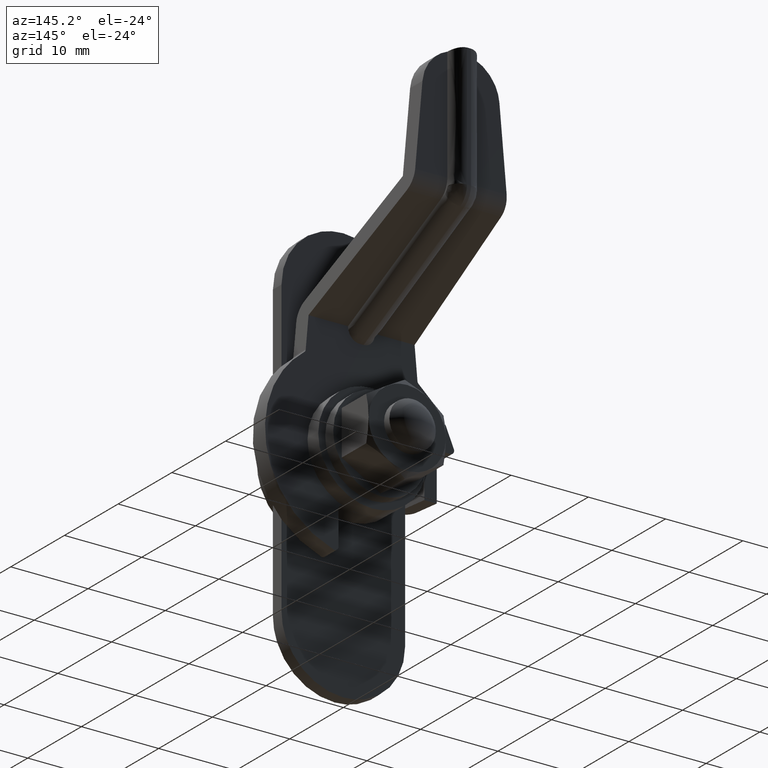
[diagram: clean part render]
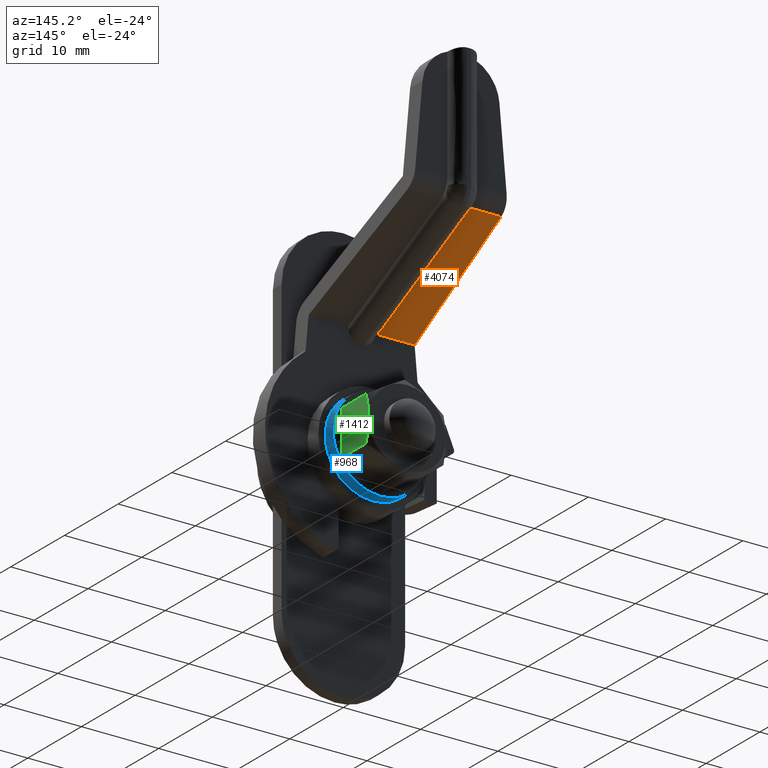
[diagram: same view with three faces highlighted in distinct colors, each labeled with its STEP entity id]
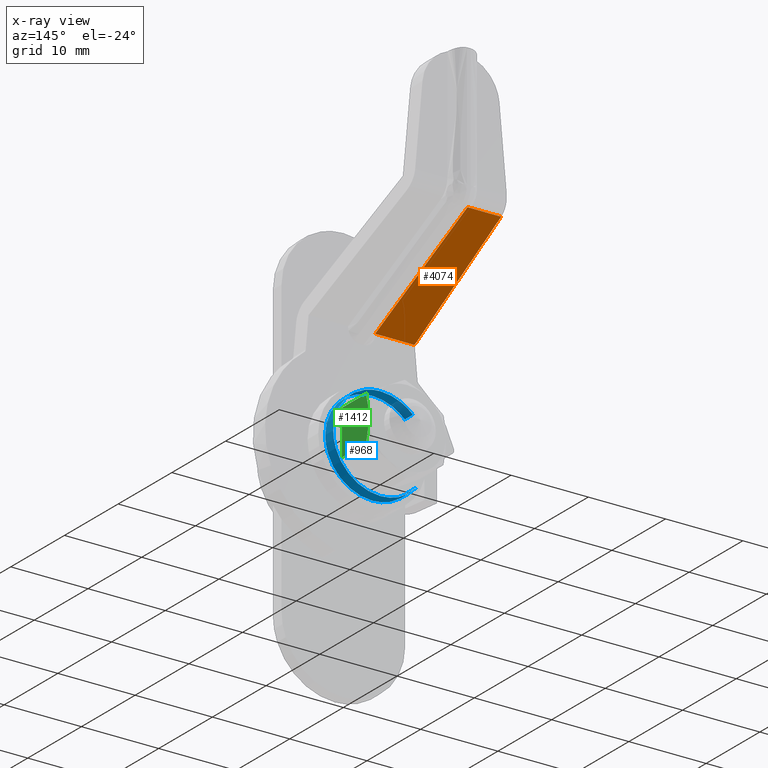
[diagram: x-ray of the same camera — body ghosted, the three highlighted faces saturated]
A machine part, auxiliary view with three faces highlighted in distinct colors.
The next image is the same camera in x-ray (body ghosted, the three faces saturated) — at least one of them is partly hidden behind the body in this view.
Their STEP definitions:

[orange] entity #4074 — the highlighted face is a freeform B-spline surface patch.
#3909=CARTESIAN_POINT('',(-1.750000000000030,19.512093947884001,22.934645504333350));
#3910=VERTEX_POINT('',#3909);
#3924=CARTESIAN_POINT('',(-1.750000000000030,2.299988000000000,14.499981079659619));
#3925=VERTEX_POINT('',#3924);
#3941=CARTESIAN_POINT('',(-1.750000000000030,19.512093947884001,22.934645504333350));
#3942=CARTESIAN_POINT('',(-1.750000000000030,2.299988000000000,14.499981079659619));
#3943=QUASI_UNIFORM_CURVE('',1,(#3941,#3942),.UNSPECIFIED.,.F.,.U.);
#3944=EDGE_CURVE('',#3910,#3925,#3943,.T.);
#3965=CARTESIAN_POINT('',(-6.104211758462009,19.512093947884100,22.934645504333400));
#3966=VERTEX_POINT('',#3965);
#3993=CARTESIAN_POINT('',(-6.104211758462009,19.512093947884100,22.934645504333400));
#3994=CARTESIAN_POINT('',(-1.750000000000030,19.512093947884001,22.934645504333350));
#3995=QUASI_UNIFORM_CURVE('',1,(#3993,#3994),.UNSPECIFIED.,.F.,.U.);
#3996=EDGE_CURVE('',#3966,#3910,#3995,.T.);
#4053=CARTESIAN_POINT('',(-7.117425493424841,1.440243179688648,14.078669528816601));
#4054=CARTESIAN_POINT('',(-7.117425493424841,20.371839075971881,23.355957205999999));
#4055=CARTESIAN_POINT('',(-1.494651614406487,1.440243179688648,14.078669528816601));
#4056=CARTESIAN_POINT('',(-1.494651614406487,20.371839075971881,23.355957205999989));
#4057=B_SPLINE_SURFACE_WITH_KNOTS('',1,1,((#4053,#4055),(#4054,#4056)),.UNSPECIFIED.,.F.,.F.,.U.,(2,2),(2,2),(0.0,21.082537556598520),(0.0,5.622773879018354),.UNSPECIFIED.);
#4058=CARTESIAN_POINT('',(-6.862077153536830,2.299988000000000,14.499981079659619));
#4059=VERTEX_POINT('',#4058);
#4060=CARTESIAN_POINT('',(-6.104211758462009,19.512093947884100,22.934645504333400));
#4061=CARTESIAN_POINT('',(-6.862077153536830,2.299988000000000,14.499981079659619));
#4062=QUASI_UNIFORM_CURVE('',1,(#4060,#4061),.UNSPECIFIED.,.F.,.U.);
#4063=EDGE_CURVE('',#3966,#4059,#4062,.T.);
#4064=ORIENTED_EDGE('',*,*,#4063,.F.);
#4065=ORIENTED_EDGE('',*,*,#3996,.T.);
#4066=ORIENTED_EDGE('',*,*,#3944,.T.);
#4067=CARTESIAN_POINT('',(-6.862077153536830,2.299988000000000,14.499981079659619));
#4068=CARTESIAN_POINT('',(-1.750000000000030,2.299988000000000,14.499981079659619));
#4069=QUASI_UNIFORM_CURVE('',1,(#4067,#4068),.UNSPECIFIED.,.F.,.U.);
#4070=EDGE_CURVE('',#4059,#3925,#4069,.T.);
#4071=ORIENTED_EDGE('',*,*,#4070,.F.);
#4072=EDGE_LOOP('',(#4064,#4065,#4066,#4071));
#4073=FACE_OUTER_BOUND('',#4072,.T.);
#4074=ADVANCED_FACE('',(#4073),#4057,.T.);

[blue] entity #968 — the highlighted face is a freeform B-spline surface patch.
#808=CARTESIAN_POINT('',(-4.657688658381193,6.937509000000183,-3.939025788388318));
#809=CARTESIAN_POINT('',(-4.544955432637456,6.937509000000183,-4.072326836712796));
#810=CARTESIAN_POINT('',(-4.424782937800582,6.937509000000183,-4.198962223377324));
#811=CARTESIAN_POINT('',(-0.225820714423259,6.937509000000183,-8.623745161177904));
#812=CARTESIAN_POINT('',(4.198962223377323,6.937509000000183,-4.424782937800583));
#813=CARTESIAN_POINT('',(8.623745161177904,6.937509000000183,-0.225820714423260));
#814=CARTESIAN_POINT('',(4.424782937800582,6.937509000000183,4.198962223377322));
#815=CARTESIAN_POINT('',(0.225820714423259,6.937509000000183,8.623745161177904));
#816=CARTESIAN_POINT('',(-4.198962223377323,6.937509000000183,4.424782937800581));
#817=CARTESIAN_POINT('',(-4.657688658381193,5.361571500000098,-3.939025788388318));
#818=CARTESIAN_POINT('',(-4.544955432637456,5.361571500000098,-4.072326836712796));
#819=CARTESIAN_POINT('',(-4.424782937800582,5.361571500000096,-4.198962223377324));
#820=CARTESIAN_POINT('',(-0.225820714423259,5.361571500000095,-8.623745161177904));
#821=CARTESIAN_POINT('',(4.198962223377323,5.361571500000096,-4.424782937800583));
#822=CARTESIAN_POINT('',(8.623745161177904,5.361571500000095,-0.225820714423260));
#823=CARTESIAN_POINT('',(4.424782937800582,5.361571500000096,4.198962223377322));
#824=CARTESIAN_POINT('',(0.225820714423259,5.361571500000095,8.623745161177904));
#825=CARTESIAN_POINT('',(-4.198962223377323,5.361571500000096,4.424782937800581));
#833=(BOUNDED_SURFACE()B_SPLINE_SURFACE(2,1,((#808,#817),(#809,#818),(#810,#819),(#811,#820),(#812,#821),(#813,#822),(#814,#823),(#815,#824),(#816,#825)),.UNSPECIFIED.,.F.,.F.,.U.)B_SPLINE_SURFACE_WITH_KNOTS((3,2,2,2,3),(2,2),(0.0,0.404272370601971,10.511081635651241,20.617890900700509,30.724700165749770),(0.0,1.0),.UNSPECIFIED.)GEOMETRIC_REPRESENTATION_ITEM()RATIONAL_B_SPLINE_SURFACE(((0.977505800795127,0.977505800795127),(0.988284271247462,0.988284271247462),(1.0,1.0),(0.707106781186548,0.707106781186548),(1.0,1.0),(0.707106781186548,0.707106781186548),(1.0,1.0),(0.707106781186548,0.707106781186548),(1.0,1.0)))REPRESENTATION_ITEM('')SURFACE());
#834=CARTESIAN_POINT('',(-4.657688884143928,6.900009000008767,-3.939025927044530));
#835=VERTEX_POINT('',#834);
#836=CARTESIAN_POINT('',(0.0,6.900009000000181,-6.099999000000001));
#837=VERTEX_POINT('',#836);
#838=CARTESIAN_POINT('',(-4.657688884143928,6.900009000008767,-3.939025927044530));
#839=CARTESIAN_POINT('',(-4.372555210874878,6.900009000008251,-4.276293160386472));
#840=CARTESIAN_POINT('',(-3.708467586987170,6.900009000006994,-4.907589579792449));
#841=CARTESIAN_POINT('',(-2.514188834800823,6.900009000004830,-5.617487792204411));
#842=CARTESIAN_POINT('',(-1.242102918014211,6.900009000002529,-6.018458892938779));
#843=CARTESIAN_POINT('',(-0.386436953904665,6.900009000000832,-6.100033922254498));
#844=CARTESIAN_POINT('',(0.0,6.900009000000181,-6.099999000000001));
#845=B_SPLINE_CURVE_WITH_KNOTS('',3,(#838,#839,#840,#841,#842,#843,#844),.UNSPECIFIED.,.F.,.U.,(4,1,1,1,4),(6.521874E-009,1.324932473427636,2.732671746908724,4.140416032425146,5.299729874123959),.UNSPECIFIED.);
#846=EDGE_CURVE('',#835,#837,#845,.T.);
#847=ORIENTED_EDGE('',*,*,#846,.T.);
#848=CARTESIAN_POINT('',(6.099998999999907,6.900009000000180,0.000001062420685));
#849=VERTEX_POINT('',#848);
#850=CARTESIAN_POINT('',(0.0,6.900009000000181,-6.099999000000001));
#851=CARTESIAN_POINT('',(0.399248583974226,6.900009000000178,-6.100050630991074));
#852=CARTESIAN_POINT('',(0.998089898873884,6.900009000000195,-6.040982718074586));
#853=CARTESIAN_POINT('',(1.894756845513057,6.900009000000169,-5.816376337004799));
#854=CARTESIAN_POINT('',(2.733539338312842,6.900009000000181,-5.486923601238535));
#855=CARTESIAN_POINT('',(3.740049109111904,6.900009000000168,-4.875304526581016));
#856=CARTESIAN_POINT('',(4.581880065716657,6.900009000000161,-4.083600574898270));
#857=CARTESIAN_POINT('',(5.182739201871997,6.900009000000227,-3.252136006708966));
#858=CARTESIAN_POINT('',(5.559859264268861,6.900009000000096,-2.546606642704860));
#859=CARTESIAN_POINT('',(5.865791632758364,6.900009000000207,-1.753566408081554));
#860=CARTESIAN_POINT('',(6.057849504583670,6.900009000000186,-0.898296173445536));
#861=CARTESIAN_POINT('',(6.100004315957525,6.900009000000101,-0.274473571572728));
#862=CARTESIAN_POINT('',(6.099998999999907,6.900009000000180,0.000001062420685));
#863=B_SPLINE_CURVE_WITH_KNOTS('',3,(#850,#851,#852,#853,#854,#855,#856,#857,#858,#859,#860,#861,#862),.UNSPECIFIED.,.F.,.U.,(4,1,1,1,1,1,1,1,1,1,4),(0.000000037442645,1.197737892699440,1.796607903593183,2.769776450573040,3.892669947438507,5.314953070678180,6.213264677404890,6.961858673416995,7.710450051055847,8.758485142737909,9.581916743534286),.UNSPECIFIED.);
#864=EDGE_CURVE('',#837,#849,#863,.T.);
#865=ORIENTED_EDGE('',*,*,#864,.T.);
#866=CARTESIAN_POINT('',(0.0,6.900009000000181,6.099999000000000));
#867=VERTEX_POINT('',#866);
#868=CARTESIAN_POINT('',(6.099998999999907,6.900009000000180,0.000001062420685));
#869=CARTESIAN_POINT('',(6.100037960821120,6.900009000000192,0.399245430055321));
#870=CARTESIAN_POINT('',(6.018898929811138,6.900009000000162,1.222680010078005));
#871=CARTESIAN_POINT('',(5.706846353847084,6.900009000000179,2.229134025510440));
#872=CARTESIAN_POINT('',(5.262838326045391,6.900009000000181,3.124762844644862));
#873=CARTESIAN_POINT('',(4.667821911893705,6.900009000000200,3.992190702429834));
#874=CARTESIAN_POINT('',(3.817689050954336,6.900009000000181,4.811616070844425));
#875=CARTESIAN_POINT('',(2.865449833081640,6.900009000000186,5.414484240166612));
#876=CARTESIAN_POINT('',(1.899593259022624,6.900009000000178,5.828563307214436));
#877=CARTESIAN_POINT('',(0.948204873714781,6.900009000000183,6.054487038352556));
#878=CARTESIAN_POINT('',(0.274474158852884,6.900009000000186,6.100004278356393));
#879=CARTESIAN_POINT('',(0.0,6.900009000000181,6.099999000000000));
#880=B_SPLINE_CURVE_WITH_KNOTS('',3,(#868,#869,#870,#871,#872,#873,#874,#875,#876,#877,#878,#879),.UNSPECIFIED.,.F.,.U.,(4,1,1,1,1,1,1,1,1,4),(0.000000037808418,1.197737743453248,2.470338347589126,3.144075381406833,4.192099070175216,5.614389287707544,6.662424248270133,7.560734537449111,8.758484048234935,9.581915545931071),.UNSPECIFIED.);
#881=EDGE_CURVE('',#849,#867,#880,.T.);
#882=ORIENTED_EDGE('',*,*,#881,.T.);
#883=CARTESIAN_POINT('',(-4.198962067791952,6.900008999996453,4.424782719784478));
#884=VERTEX_POINT('',#883);
#885=CARTESIAN_POINT('',(0.0,6.900009000000181,6.099999000000000));
#886=CARTESIAN_POINT('',(-0.603056836863999,6.900008999999649,6.100282710100964));
#887=CARTESIAN_POINT('',(-1.640097281605575,6.900008999998728,5.944894425808183));
#888=CARTESIAN_POINT('',(-3.068054378050561,6.900008999997440,5.335456625682630));
#889=CARTESIAN_POINT('',(-3.831618493966733,6.900008999996819,4.773579732092336));
#890=CARTESIAN_POINT('',(-4.198962067791952,6.900008999996453,4.424782719784478));
#891=B_SPLINE_CURVE_WITH_KNOTS('',3,(#885,#886,#887,#888,#889,#890),.UNSPECIFIED.,.F.,.U.,(4,1,1,4),(0.000000012326214,1.809087398168069,3.111622525431983,4.631257501571008),.UNSPECIFIED.);
#892=EDGE_CURVE('',#867,#884,#891,.T.);
#893=ORIENTED_EDGE('',*,*,#892,.T.);
#894=CARTESIAN_POINT('',(-4.198962067478275,5.400009000000099,4.424782720082144));
#895=VERTEX_POINT('',#894);
#896=CARTESIAN_POINT('',(-4.198962067791952,6.900008999996453,4.424782719784478));
#897=CARTESIAN_POINT('',(-4.198962067478275,5.400009000000099,4.424782720082144));
#898=QUASI_UNIFORM_CURVE('',1,(#896,#897),.UNSPECIFIED.,.F.,.U.);
#899=EDGE_CURVE('',#884,#895,#898,.T.);
#900=ORIENTED_EDGE('',*,*,#899,.T.);
#901=CARTESIAN_POINT('',(0.0,5.400009000000099,6.099999000000000));
#902=VERTEX_POINT('',#901);
#903=CARTESIAN_POINT('',(0.0,5.400009000000099,6.099999000000000));
#904=CARTESIAN_POINT('',(-0.506555777297606,5.400009000000097,6.100131425726231));
#905=CARTESIAN_POINT('',(-1.447205406026400,5.400009000000106,5.982139073877670));
#906=CARTESIAN_POINT('',(-2.561401251215484,5.400009000000091,5.567979638902402));
#907=CARTESIAN_POINT('',(-3.462053464417310,5.400009000000107,5.049884197167892));
#908=CARTESIAN_POINT('',(-3.936530366034905,5.400009000000139,4.673863867606444));
#909=CARTESIAN_POINT('',(-4.198962067478275,5.400009000000099,4.424782720082144));
#910=B_SPLINE_CURVE_WITH_KNOTS('',3,(#903,#904,#905,#906,#907,#908,#909),.UNSPECIFIED.,.F.,.U.,(4,1,1,1,4),(0.000000012326018,1.519634988335683,2.822170115458725,3.545807441157272,4.631257501138570),.UNSPECIFIED.);
#911=EDGE_CURVE('',#902,#895,#910,.T.);
#912=ORIENTED_EDGE('',*,*,#911,.F.);
#913=CARTESIAN_POINT('',(6.099998999999907,5.400009000000098,0.000001062420685));
#914=VERTEX_POINT('',#913);
#915=CARTESIAN_POINT('',(6.099998999999907,5.400009000000098,0.000001062420685));
#916=CARTESIAN_POINT('',(6.100037961980450,5.400009000000111,0.399245428721825));
#917=CARTESIAN_POINT('',(6.018898923532845,5.400009000000090,1.222680016285827));
#918=CARTESIAN_POINT('',(5.706846370196045,5.400009000000097,2.229134003164206));
#919=CARTESIAN_POINT('',(5.262845417759741,5.400009000000097,3.124770160842131));
#920=CARTESIAN_POINT('',(4.781114422679734,5.400009000000111,3.826913763143678));
#921=CARTESIAN_POINT('',(4.044403472398130,5.400009000000112,4.610365874965394));
#922=CARTESIAN_POINT('',(3.177332482722060,5.400009000000093,5.253426767429596));
#923=CARTESIAN_POINT('',(2.181115624953663,5.400009000000101,5.724545645256872));
#924=CARTESIAN_POINT('',(1.147797534028834,5.400009000000098,6.024184499381338));
#925=CARTESIAN_POINT('',(0.424203829575363,5.400009000000101,6.100073379860308));
#926=CARTESIAN_POINT('',(0.0,5.400009000000099,6.099999000000000));
#927=B_SPLINE_CURVE_WITH_KNOTS('',3,(#915,#916,#917,#918,#919,#920,#921,#922,#923,#924,#925,#926),.UNSPECIFIED.,.F.,.U.,(4,1,1,1,1,1,1,1,1,4),(0.000000037808418,1.197737743453248,2.470338347589126,3.144075381406833,4.192099070175216,5.015511298386910,6.362980360457510,7.411015532297880,8.309317976546431,9.581915545931071),.UNSPECIFIED.);
#928=EDGE_CURVE('',#914,#902,#927,.T.);
#929=ORIENTED_EDGE('',*,*,#928,.F.);
#930=CARTESIAN_POINT('',(0.0,5.400009000000099,-6.099999000000001));
#931=VERTEX_POINT('',#930);
#932=CARTESIAN_POINT('',(0.0,5.400009000000099,-6.099999000000001));
#933=CARTESIAN_POINT('',(0.399248583793905,5.400009000000090,-6.100050630174361));
#934=CARTESIAN_POINT('',(0.998089899427281,5.400009000000114,-6.040982720419311));
#935=CARTESIAN_POINT('',(1.894756698942708,5.400009000000084,-5.816376197881005));
#936=CARTESIAN_POINT('',(2.733548982138446,5.400009000000099,-5.486933476414118));
#937=CARTESIAN_POINT('',(3.525854656801519,5.400009000000113,-5.005376616260917));
#938=CARTESIAN_POINT('',(4.371619933574376,5.400009000000052,-4.302639379960166));
#939=CARTESIAN_POINT('',(5.035265897490892,5.400009000000127,-3.513957941400827));
#940=CARTESIAN_POINT('',(5.541853664675153,5.400009000000059,-2.593240633729968));
#941=CARTESIAN_POINT('',(5.865790515317432,5.400009000000107,-1.753566028646145));
#942=CARTESIAN_POINT('',(6.057849664524670,5.400009000000104,-0.898296163397257));
#943=CARTESIAN_POINT('',(6.100004284396043,5.400009000000036,-0.274473573562573));
#944=CARTESIAN_POINT('',(6.099998999999907,5.400009000000098,0.000001062420685));
#945=B_SPLINE_CURVE_WITH_KNOTS('',3,(#932,#933,#934,#935,#936,#937,#938,#939,#940,#941,#942,#943,#944),.UNSPECIFIED.,.F.,.U.,(4,1,1,1,1,1,1,1,1,1,4),(0.000000037442645,1.197737892699440,1.796607903593183,2.769776450573040,3.892669947438507,4.566404274899331,6.063556117024595,6.961858673416995,7.710450051055847,8.758485142737909,9.581916743534286),.UNSPECIFIED.);
#946=EDGE_CURVE('',#931,#914,#945,.T.);
#947=ORIENTED_EDGE('',*,*,#946,.F.);
#948=CARTESIAN_POINT('',(-4.657688883828575,5.400009000000100,-3.939025927417418));
#949=VERTEX_POINT('',#948);
#950=CARTESIAN_POINT('',(-4.657688883828575,5.400009000000100,-3.939025927417418));
#951=CARTESIAN_POINT('',(-4.372562856866021,5.400009000000111,-4.276306919086302));
#952=CARTESIAN_POINT('',(-3.869426628221263,5.400009000000090,-4.754498670348064));
#953=CARTESIAN_POINT('',(-3.019496542667830,5.400009000000113,-5.324209378127548));
#954=CARTESIAN_POINT('',(-2.170816453006171,5.400009000000115,-5.732081158879052));
#955=CARTESIAN_POINT('',(-1.131691141731072,5.400009000000059,-6.028942316711821));
#956=CARTESIAN_POINT('',(-0.386438574959211,5.400009000000126,-6.100044876745685));
#957=CARTESIAN_POINT('',(0.0,5.400009000000099,-6.099999000000001));
#958=B_SPLINE_CURVE_WITH_KNOTS('',3,(#950,#951,#952,#953,#954,#955,#956,#957),.UNSPECIFIED.,.F.,.U.,(4,1,1,1,1,4),(6.521954E-009,1.324932473305616,2.070212910994223,3.063901002335120,4.140416032043600,5.299729873635586),.UNSPECIFIED.);
#959=EDGE_CURVE('',#949,#931,#958,.T.);
#960=ORIENTED_EDGE('',*,*,#959,.F.);
#961=CARTESIAN_POINT('',(-4.657688884143928,6.900009000008767,-3.939025927044530));
#962=CARTESIAN_POINT('',(-4.657688883828575,5.400009000000100,-3.939025927417418));
#963=QUASI_UNIFORM_CURVE('',1,(#961,#962),.UNSPECIFIED.,.F.,.U.);
#964=EDGE_CURVE('',#835,#949,#963,.T.);
#965=ORIENTED_EDGE('',*,*,#964,.F.);
#966=EDGE_LOOP('',(#847,#865,#882,#893,#900,#912,#929,#947,#960,#965));
#967=FACE_OUTER_BOUND('',#966,.T.);
#968=ADVANCED_FACE('',(#967),#833,.T.);

[green] entity #1412 — the highlighted face is a freeform B-spline surface patch.
#1352=CARTESIAN_POINT('',(5.000000000000171,6.650259337253601,-3.175131459539287));
#1353=CARTESIAN_POINT('',(5.000000000000171,6.650259337253601,3.175155742285182));
#1354=CARTESIAN_POINT('',(5.000000000000171,12.149755192163600,-3.175131459539287));
#1355=CARTESIAN_POINT('',(5.000000000000171,12.149755192163600,3.175155742285182));
#1356=B_SPLINE_SURFACE_WITH_KNOTS('',1,1,((#1352,#1354),(#1353,#1355)),.UNSPECIFIED.,.F.,.F.,.U.,(2,2),(2,2),(0.0,6.350287201824468),(0.0,5.499495854910002),.UNSPECIFIED.);
#1357=CARTESIAN_POINT('',(5.000000000000171,11.453415000000200,2.886768618788705));
#1358=VERTEX_POINT('',#1357);
#1359=CARTESIAN_POINT('',(5.000000000000171,6.900009000000210,2.886768618788705));
#1360=VERTEX_POINT('',#1359);
#1361=CARTESIAN_POINT('',(5.000000000000171,11.453415000000200,2.886768618788705));
#1362=CARTESIAN_POINT('',(5.000000000000171,6.900009000000210,2.886768618788705));
#1363=QUASI_UNIFORM_CURVE('',1,(#1361,#1362),.UNSPECIFIED.,.F.,.U.);
#1364=EDGE_CURVE('',#1358,#1360,#1363,.T.);
#1365=ORIENTED_EDGE('',*,*,#1364,.T.);
#1366=CARTESIAN_POINT('',(5.000000000000171,6.900009000000210,-2.886740339730660));
#1367=VERTEX_POINT('',#1366);
#1368=CARTESIAN_POINT('',(5.000000000000171,6.900009000000210,2.886768618788705));
#1369=CARTESIAN_POINT('',(5.000000000000171,6.900009000000210,-2.886740339730660));
#1370=QUASI_UNIFORM_CURVE('',1,(#1368,#1369),.UNSPECIFIED.,.F.,.U.);
#1371=EDGE_CURVE('',#1360,#1367,#1370,.T.);
#1372=ORIENTED_EDGE('',*,*,#1371,.T.);
#1373=CARTESIAN_POINT('',(5.000007279472129,11.453419852999760,-2.886744542519730));
#1374=VERTEX_POINT('',#1373);
#1375=CARTESIAN_POINT('',(5.000007279472129,11.453419852999760,-2.886744542519730));
#1376=CARTESIAN_POINT('',(5.000000000000171,6.900009000000210,-2.886740339730660));
#1377=QUASI_UNIFORM_CURVE('',1,(#1375,#1376),.UNSPECIFIED.,.F.,.U.);
#1378=EDGE_CURVE('',#1374,#1367,#1377,.T.);
#1379=ORIENTED_EDGE('',*,*,#1378,.F.);
#1380=CARTESIAN_POINT('',(5.000000000000171,11.900005618823901,-7.715016E-016));
#1381=VERTEX_POINT('',#1380);
#1382=CARTESIAN_POINT('',(5.000000000000171,11.900005618823901,-7.715016E-016));
#1383=CARTESIAN_POINT('',(5.000000600135548,11.900005096069791,-0.243685062901841));
#1384=CARTESIAN_POINT('',(5.000001202290200,11.889668710650520,-0.486591087188697));
#1385=CARTESIAN_POINT('',(5.000002411170752,11.849313389268641,-0.971214387023803));
#1386=CARTESIAN_POINT('',(5.000003017898449,11.819285258398191,-1.212930969529923));
#1387=CARTESIAN_POINT('',(5.000004234805162,11.741563070284350,-1.695032611546955));
#1388=CARTESIAN_POINT('',(5.000004845247299,11.693861746137650,-1.935523387847301));
#1389=CARTESIAN_POINT('',(5.000006067998483,11.583440586857890,-2.414939623235729));
#1390=CARTESIAN_POINT('',(5.000006675333660,11.521208048070170,-2.651920827111844));
#1391=CARTESIAN_POINT('',(5.000007279472129,11.453419852999760,-2.886744542519730));
#1392=B_SPLINE_CURVE_WITH_KNOTS('',3,(#1382,#1383,#1384,#1385,#1386,#1387,#1388,#1389,#1390,#1391),.UNSPECIFIED.,.F.,.U.,(4,2,2,2,4),(0.0,0.124848977282561,0.249848977282561,0.374848977282561,0.499848977282561),.UNSPECIFIED.);
#1393=EDGE_CURVE('',#1381,#1374,#1392,.T.);
#1394=ORIENTED_EDGE('',*,*,#1393,.F.);
#1395=CARTESIAN_POINT('',(5.000000000000171,11.453415000000200,2.886768618788705));
#1396=CARTESIAN_POINT('',(5.000000000000171,11.588121932291690,2.420135336656725));
#1397=CARTESIAN_POINT('',(5.000000000000171,11.700312736592339,1.947382911560655));
#1398=CARTESIAN_POINT('',(5.000000000000172,11.798142316415760,1.344917029183777));
#1399=CARTESIAN_POINT('',(5.000000000000170,11.815579263688440,1.223845269046163));
#1400=CARTESIAN_POINT('',(5.000000000000171,11.845829593048490,0.980445215836658));
#1401=CARTESIAN_POINT('',(5.000000000000171,11.858657454724970,0.857928924514611));
#1402=CARTESIAN_POINT('',(5.000000000000171,11.889589970032990,0.489628280082109));
#1403=CARTESIAN_POINT('',(5.000000000000170,11.899980541783860,0.244865660775392));
#1404=CARTESIAN_POINT('',(5.000000000000171,11.900005603711479,0.000589544067108));
#1405=CARTESIAN_POINT('',(5.000000000000171,11.900005618829599,0.000294771463594));
#1406=CARTESIAN_POINT('',(5.000000000000171,11.900005618823901,-7.715016E-016));
#1407=B_SPLINE_CURVE_WITH_KNOTS('',3,(#1395,#1396,#1397,#1398,#1399,#1400,#1401,#1402,#1403,#1404,#1405,#1406),.UNSPECIFIED.,.F.,.U.,(4,2,2,2,2,4),(0.499848977313225,0.749848977313225,0.812348977313225,0.874848977313225,0.999848977313225,1.0),.UNSPECIFIED.);
#1408=EDGE_CURVE('',#1358,#1381,#1407,.T.);
#1409=ORIENTED_EDGE('',*,*,#1408,.F.);
#1410=EDGE_LOOP('',(#1365,#1372,#1379,#1394,#1409));
#1411=FACE_OUTER_BOUND('',#1410,.T.);
#1412=ADVANCED_FACE('',(#1411),#1356,.F.);